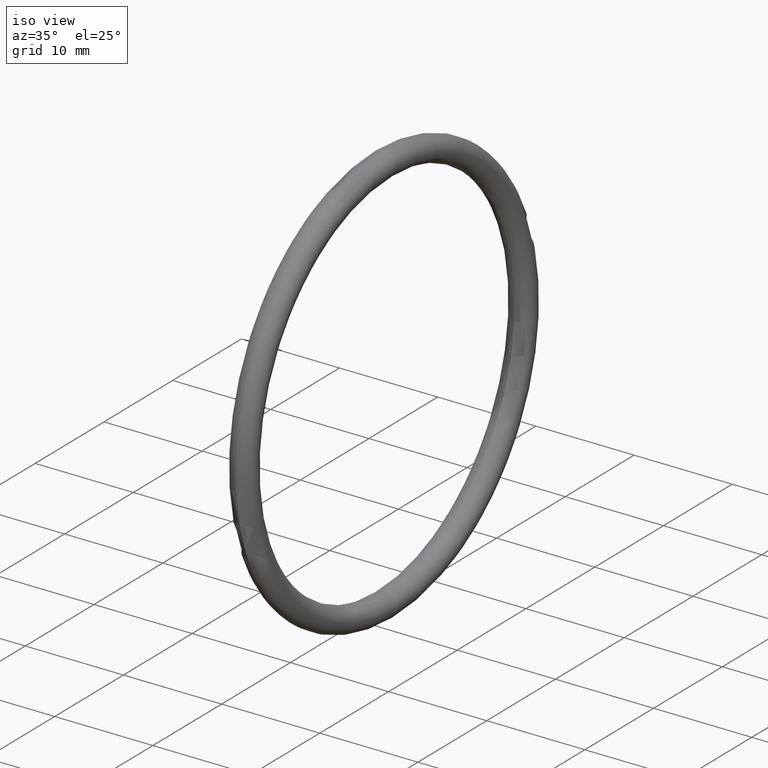
[diagram: clean part render]
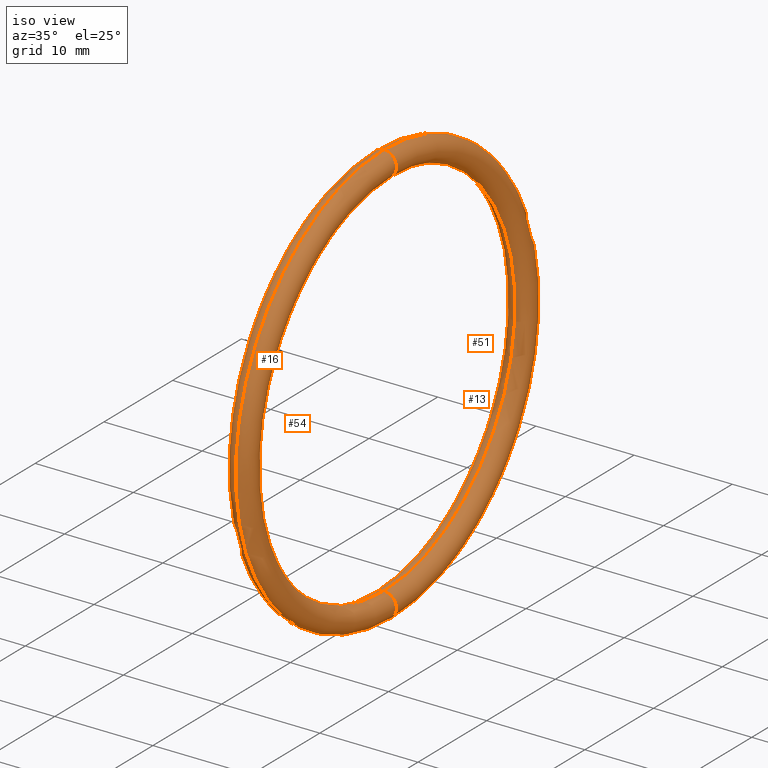
[diagram: same view with one multi-face feature highlighted, each face labeled with its STEP entity id]
A machine part, iso view. The highlighted faces form ONE feature: a constant-radius fillet chain: 4 tangent blend faces with common blend radius 1.27 mm. The faces share edges in the B-rep.
Their STEP definitions:
[1] entity #13 (Torus):
#3 = TOROIDAL_SURFACE ( 'NONE', #38, 0.8000000000000000400, 0.05000000000000000300 ) ;
#4 = CARTESIAN_POINT ( 'NONE',  ( 0.1000000000000001200, 0.0000000000000000000, 0.0000000000000000000 ) ) ;
#10 = FACE_OUTER_BOUND ( 'NONE', #14, .T. ) ;
#13 = ADVANCED_FACE ( 'NONE', ( #10 ), #3, .T. ) ;
#14 = EDGE_LOOP ( 'NONE', ( #43, #47, #85, #49 ) ) ;
#18 = VERTEX_POINT ( 'NONE', #34 ) ;
#19 = DIRECTION ( 'NONE',  ( 0.0000000000000000000, 0.0000000000000000000, 1.000000000000000000 ) ) ;
#20 = DIRECTION ( 'NONE',  ( -1.000000000000000000, -0.0000000000000000000, -0.0000000000000000000 ) ) ;
#21 = AXIS2_PLACEMENT_3D ( 'NONE', #29, #20, #19 ) ;
#22 = CIRCLE ( 'NONE', #21, 0.8500000000000000900 ) ;
#23 = CARTESIAN_POINT ( 'NONE',  ( 0.1000000000000001200, 0.0000000000000000000, 0.0000000000000000000 ) ) ;
#29 = CARTESIAN_POINT ( 'NONE',  ( 0.1000000000000001200, 0.0000000000000000000, 0.0000000000000000000 ) ) ;
#34 = CARTESIAN_POINT ( 'NONE',  ( 0.1000000000000001200, 1.040949779275250400E-016, -0.8500000000000000900 ) ) ;
#36 = DIRECTION ( 'NONE',  ( 0.0000000000000000000, 0.0000000000000000000, 1.000000000000000000 ) ) ;
#37 = DIRECTION ( 'NONE',  ( -1.000000000000000000, -0.0000000000000000000, -0.0000000000000000000 ) ) ;
#38 = AXIS2_PLACEMENT_3D ( 'NONE', #4, #37, #36 ) ;
#43 = ORIENTED_EDGE ( 'NONE', *, *, #81, .F. ) ;
#47 = ORIENTED_EDGE ( 'NONE', *, *, #48, .T. ) ;
#48 = EDGE_CURVE ( 'NONE', #79, #18, #22, .T. ) ;
#49 = ORIENTED_EDGE ( 'NONE', *, *, #50, .F. ) ;
#50 = EDGE_CURVE ( 'NONE', #82, #76, #102, .T. ) ;
#63 = CARTESIAN_POINT ( 'NONE',  ( 0.1000000000000001200, 9.184850993605150900E-017, -0.7500000000000001100 ) ) ;
#64 = DIRECTION ( 'NONE',  ( 0.0000000000000000000, -1.224646799147351700E-016, 1.000000000000000000 ) ) ;
#65 = DIRECTION ( 'NONE',  ( -0.0000000000000000000, 1.000000000000000000, 1.224646799147353200E-016 ) ) ;
#66 = CARTESIAN_POINT ( 'NONE',  ( 0.1000000000000001200, 9.797174393178826200E-017, -0.8000000000000000400 ) ) ;
#67 = AXIS2_PLACEMENT_3D ( 'NONE', #66, #65, #64 ) ;
#72 = CIRCLE ( 'NONE', #67, 0.05000000000000001000 ) ;
#75 = EDGE_CURVE ( 'NONE', #18, #76, #72, .T. ) ;
#76 = VERTEX_POINT ( 'NONE', #63 ) ;
#79 = VERTEX_POINT ( 'NONE', #115 ) ;
#81 = EDGE_CURVE ( 'NONE', #79, #82, #129, .T. ) ;
#82 = VERTEX_POINT ( 'NONE', #123 ) ;
#85 = ORIENTED_EDGE ( 'NONE', *, *, #75, .T. ) ;
#99 = DIRECTION ( 'NONE',  ( 0.0000000000000000000, 0.0000000000000000000, 1.000000000000000000 ) ) ;
#100 = DIRECTION ( 'NONE',  ( -1.000000000000000000, -0.0000000000000000000, -0.0000000000000000000 ) ) ;
#101 = AXIS2_PLACEMENT_3D ( 'NONE', #23, #100, #99 ) ;
#102 = CIRCLE ( 'NONE', #101, 0.7500000000000001100 ) ;
#108 = DIRECTION ( 'NONE',  ( 0.0000000000000000000, 0.0000000000000000000, -1.000000000000000000 ) ) ;
#115 = CARTESIAN_POINT ( 'NONE',  ( 0.1000000000000001200, 0.0000000000000000000, 0.8500000000000000900 ) ) ;
#118 = AXIS2_PLACEMENT_3D ( 'NONE', #121, #127, #108 ) ;
#121 = CARTESIAN_POINT ( 'NONE',  ( 0.1000000000000001200, 0.0000000000000000000, 0.8000000000000000400 ) ) ;
#123 = CARTESIAN_POINT ( 'NONE',  ( 0.1000000000000001200, 0.0000000000000000000, 0.7500000000000001100 ) ) ;
#127 = DIRECTION ( 'NONE',  ( 0.0000000000000000000, -1.000000000000000000, 0.0000000000000000000 ) ) ;
#129 = CIRCLE ( 'NONE', #118, 0.05000000000000001000 ) ;
[2] entity #51 (Torus):
#18 = VERTEX_POINT ( 'NONE', #34 ) ;
#19 = DIRECTION ( 'NONE',  ( 0.0000000000000000000, 0.0000000000000000000, 1.000000000000000000 ) ) ;
#20 = DIRECTION ( 'NONE',  ( -1.000000000000000000, -0.0000000000000000000, -0.0000000000000000000 ) ) ;
#21 = AXIS2_PLACEMENT_3D ( 'NONE', #29, #20, #19 ) ;
#22 = CIRCLE ( 'NONE', #21, 0.8500000000000000900 ) ;
#23 = CARTESIAN_POINT ( 'NONE',  ( 0.1000000000000001200, 0.0000000000000000000, 0.0000000000000000000 ) ) ;
#24 = DIRECTION ( 'NONE',  ( 0.0000000000000000000, 0.0000000000000000000, -1.000000000000000000 ) ) ;
#25 = DIRECTION ( 'NONE',  ( 0.0000000000000000000, -1.000000000000000000, 0.0000000000000000000 ) ) ;
#26 = CARTESIAN_POINT ( 'NONE',  ( 0.1000000000000001200, 0.0000000000000000000, 0.8000000000000000400 ) ) ;
#27 = AXIS2_PLACEMENT_3D ( 'NONE', #26, #25, #24 ) ;
#28 = CIRCLE ( 'NONE', #27, 0.05000000000000001000 ) ;
#29 = CARTESIAN_POINT ( 'NONE',  ( 0.1000000000000001200, 0.0000000000000000000, 0.0000000000000000000 ) ) ;
#34 = CARTESIAN_POINT ( 'NONE',  ( 0.1000000000000001200, 1.040949779275250400E-016, -0.8500000000000000900 ) ) ;
#44 = ORIENTED_EDGE ( 'NONE', *, *, #45, .F. ) ;
#45 = EDGE_CURVE ( 'NONE', #82, #79, #28, .T. ) ;
#46 = EDGE_LOOP ( 'NONE', ( #84, #44, #57, #56 ) ) ;
#48 = EDGE_CURVE ( 'NONE', #79, #18, #22, .T. ) ;
#50 = EDGE_CURVE ( 'NONE', #82, #76, #102, .T. ) ;
#51 = ADVANCED_FACE ( 'NONE', ( #103 ), #97, .T. ) ;
#53 = EDGE_CURVE ( 'NONE', #76, #18, #92, .T. ) ;
#56 = ORIENTED_EDGE ( 'NONE', *, *, #53, .T. ) ;
#57 = ORIENTED_EDGE ( 'NONE', *, *, #50, .T. ) ;
#63 = CARTESIAN_POINT ( 'NONE',  ( 0.1000000000000001200, 9.184850993605150900E-017, -0.7500000000000001100 ) ) ;
#76 = VERTEX_POINT ( 'NONE', #63 ) ;
#79 = VERTEX_POINT ( 'NONE', #115 ) ;
#82 = VERTEX_POINT ( 'NONE', #123 ) ;
#84 = ORIENTED_EDGE ( 'NONE', *, *, #48, .F. ) ;
#88 = DIRECTION ( 'NONE',  ( 0.0000000000000000000, -1.224646799147351700E-016, 1.000000000000000000 ) ) ;
#89 = DIRECTION ( 'NONE',  ( -0.0000000000000000000, 1.000000000000000000, 1.224646799147353200E-016 ) ) ;
#90 = CARTESIAN_POINT ( 'NONE',  ( 0.1000000000000001200, 9.797174393178826200E-017, -0.8000000000000000400 ) ) ;
#91 = AXIS2_PLACEMENT_3D ( 'NONE', #90, #89, #88 ) ;
#92 = CIRCLE ( 'NONE', #91, 0.05000000000000001000 ) ;
#94 = DIRECTION ( 'NONE',  ( 0.0000000000000000000, 0.0000000000000000000, 1.000000000000000000 ) ) ;
#95 = DIRECTION ( 'NONE',  ( -1.000000000000000000, -0.0000000000000000000, -0.0000000000000000000 ) ) ;
#96 = AXIS2_PLACEMENT_3D ( 'NONE', #98, #95, #94 ) ;
#97 = TOROIDAL_SURFACE ( 'NONE', #96, 0.8000000000000000400, 0.05000000000000000300 ) ;
#98 = CARTESIAN_POINT ( 'NONE',  ( 0.1000000000000001200, 0.0000000000000000000, 0.0000000000000000000 ) ) ;
#99 = DIRECTION ( 'NONE',  ( 0.0000000000000000000, 0.0000000000000000000, 1.000000000000000000 ) ) ;
#100 = DIRECTION ( 'NONE',  ( -1.000000000000000000, -0.0000000000000000000, -0.0000000000000000000 ) ) ;
#101 = AXIS2_PLACEMENT_3D ( 'NONE', #23, #100, #99 ) ;
#102 = CIRCLE ( 'NONE', #101, 0.7500000000000001100 ) ;
#103 = FACE_OUTER_BOUND ( 'NONE', #46, .T. ) ;
#115 = CARTESIAN_POINT ( 'NONE',  ( 0.1000000000000001200, 0.0000000000000000000, 0.8500000000000000900 ) ) ;
#123 = CARTESIAN_POINT ( 'NONE',  ( 0.1000000000000001200, 0.0000000000000000000, 0.7500000000000001100 ) ) ;
[3] entity #54 (Torus):
#2 = DIRECTION ( 'NONE',  ( 0.0000000000000000000, 0.0000000000000000000, 1.000000000000000000 ) ) ;
#5 = DIRECTION ( 'NONE',  ( 0.0000000000000000000, 0.0000000000000000000, 1.000000000000000000 ) ) ;
#6 = DIRECTION ( 'NONE',  ( -1.000000000000000000, -0.0000000000000000000, -0.0000000000000000000 ) ) ;
#7 = CARTESIAN_POINT ( 'NONE',  ( 0.1000000000000001200, 0.0000000000000000000, 0.0000000000000000000 ) ) ;
#8 = AXIS2_PLACEMENT_3D ( 'NONE', #7, #6, #5 ) ;
#9 = CIRCLE ( 'NONE', #8, 0.7500000000000001100 ) ;
#12 = EDGE_CURVE ( 'NONE', #76, #82, #9, .T. ) ;
#18 = VERTEX_POINT ( 'NONE', #34 ) ;
#24 = DIRECTION ( 'NONE',  ( 0.0000000000000000000, 0.0000000000000000000, -1.000000000000000000 ) ) ;
#25 = DIRECTION ( 'NONE',  ( 0.0000000000000000000, -1.000000000000000000, 0.0000000000000000000 ) ) ;
#26 = CARTESIAN_POINT ( 'NONE',  ( 0.1000000000000001200, 0.0000000000000000000, 0.8000000000000000400 ) ) ;
#27 = AXIS2_PLACEMENT_3D ( 'NONE', #26, #25, #24 ) ;
#28 = CIRCLE ( 'NONE', #27, 0.05000000000000001000 ) ;
#34 = CARTESIAN_POINT ( 'NONE',  ( 0.1000000000000001200, 1.040949779275250400E-016, -0.8500000000000000900 ) ) ;
#40 = ORIENTED_EDGE ( 'NONE', *, *, #12, .T. ) ;
#41 = ORIENTED_EDGE ( 'NONE', *, *, #45, .T. ) ;
#45 = EDGE_CURVE ( 'NONE', #82, #79, #28, .T. ) ;
#52 = ORIENTED_EDGE ( 'NONE', *, *, #53, .F. ) ;
#53 = EDGE_CURVE ( 'NONE', #76, #18, #92, .T. ) ;
#54 = ADVANCED_FACE ( 'NONE', ( #93 ), #71, .T. ) ;
#55 = ORIENTED_EDGE ( 'NONE', *, *, #78, .F. ) ;
#58 = DIRECTION ( 'NONE',  ( -1.000000000000000000, -0.0000000000000000000, -0.0000000000000000000 ) ) ;
#59 = CARTESIAN_POINT ( 'NONE',  ( 0.1000000000000001200, 0.0000000000000000000, 0.0000000000000000000 ) ) ;
#60 = AXIS2_PLACEMENT_3D ( 'NONE', #59, #58, #2 ) ;
#61 = CIRCLE ( 'NONE', #60, 0.8500000000000000900 ) ;
#63 = CARTESIAN_POINT ( 'NONE',  ( 0.1000000000000001200, 9.184850993605150900E-017, -0.7500000000000001100 ) ) ;
#68 = DIRECTION ( 'NONE',  ( 0.0000000000000000000, 0.0000000000000000000, 1.000000000000000000 ) ) ;
#69 = DIRECTION ( 'NONE',  ( -1.000000000000000000, -0.0000000000000000000, -0.0000000000000000000 ) ) ;
#70 = AXIS2_PLACEMENT_3D ( 'NONE', #73, #69, #68 ) ;
#71 = TOROIDAL_SURFACE ( 'NONE', #70, 0.8000000000000000400, 0.05000000000000000300 ) ;
#73 = CARTESIAN_POINT ( 'NONE',  ( 0.1000000000000001200, 0.0000000000000000000, 0.0000000000000000000 ) ) ;
#76 = VERTEX_POINT ( 'NONE', #63 ) ;
#78 = EDGE_CURVE ( 'NONE', #18, #79, #61, .T. ) ;
#79 = VERTEX_POINT ( 'NONE', #115 ) ;
#82 = VERTEX_POINT ( 'NONE', #123 ) ;
#83 = EDGE_LOOP ( 'NONE', ( #55, #52, #40, #41 ) ) ;
#88 = DIRECTION ( 'NONE',  ( 0.0000000000000000000, -1.224646799147351700E-016, 1.000000000000000000 ) ) ;
#89 = DIRECTION ( 'NONE',  ( -0.0000000000000000000, 1.000000000000000000, 1.224646799147353200E-016 ) ) ;
#90 = CARTESIAN_POINT ( 'NONE',  ( 0.1000000000000001200, 9.797174393178826200E-017, -0.8000000000000000400 ) ) ;
#91 = AXIS2_PLACEMENT_3D ( 'NONE', #90, #89, #88 ) ;
#92 = CIRCLE ( 'NONE', #91, 0.05000000000000001000 ) ;
#93 = FACE_OUTER_BOUND ( 'NONE', #83, .T. ) ;
#115 = CARTESIAN_POINT ( 'NONE',  ( 0.1000000000000001200, 0.0000000000000000000, 0.8500000000000000900 ) ) ;
#123 = CARTESIAN_POINT ( 'NONE',  ( 0.1000000000000001200, 0.0000000000000000000, 0.7500000000000001100 ) ) ;
[4] entity #16 (Torus):
#2 = DIRECTION ( 'NONE',  ( 0.0000000000000000000, 0.0000000000000000000, 1.000000000000000000 ) ) ;
#5 = DIRECTION ( 'NONE',  ( 0.0000000000000000000, 0.0000000000000000000, 1.000000000000000000 ) ) ;
#6 = DIRECTION ( 'NONE',  ( -1.000000000000000000, -0.0000000000000000000, -0.0000000000000000000 ) ) ;
#7 = CARTESIAN_POINT ( 'NONE',  ( 0.1000000000000001200, 0.0000000000000000000, 0.0000000000000000000 ) ) ;
#8 = AXIS2_PLACEMENT_3D ( 'NONE', #7, #6, #5 ) ;
#9 = CIRCLE ( 'NONE', #8, 0.7500000000000001100 ) ;
#11 = ORIENTED_EDGE ( 'NONE', *, *, #12, .F. ) ;
#12 = EDGE_CURVE ( 'NONE', #76, #82, #9, .T. ) ;
#16 = ADVANCED_FACE ( 'NONE', ( #39 ), #35, .T. ) ;
#17 = EDGE_LOOP ( 'NONE', ( #74, #77, #80, #11 ) ) ;
#18 = VERTEX_POINT ( 'NONE', #34 ) ;
#30 = DIRECTION ( 'NONE',  ( 0.0000000000000000000, 0.0000000000000000000, 1.000000000000000000 ) ) ;
#31 = DIRECTION ( 'NONE',  ( -1.000000000000000000, -0.0000000000000000000, -0.0000000000000000000 ) ) ;
#32 = CARTESIAN_POINT ( 'NONE',  ( 0.1000000000000001200, 0.0000000000000000000, 0.0000000000000000000 ) ) ;
#33 = AXIS2_PLACEMENT_3D ( 'NONE', #32, #31, #30 ) ;
#34 = CARTESIAN_POINT ( 'NONE',  ( 0.1000000000000001200, 1.040949779275250400E-016, -0.8500000000000000900 ) ) ;
#35 = TOROIDAL_SURFACE ( 'NONE', #33, 0.8000000000000000400, 0.05000000000000000300 ) ;
#39 = FACE_OUTER_BOUND ( 'NONE', #17, .T. ) ;
#58 = DIRECTION ( 'NONE',  ( -1.000000000000000000, -0.0000000000000000000, -0.0000000000000000000 ) ) ;
#59 = CARTESIAN_POINT ( 'NONE',  ( 0.1000000000000001200, 0.0000000000000000000, 0.0000000000000000000 ) ) ;
#60 = AXIS2_PLACEMENT_3D ( 'NONE', #59, #58, #2 ) ;
#61 = CIRCLE ( 'NONE', #60, 0.8500000000000000900 ) ;
#63 = CARTESIAN_POINT ( 'NONE',  ( 0.1000000000000001200, 9.184850993605150900E-017, -0.7500000000000001100 ) ) ;
#64 = DIRECTION ( 'NONE',  ( 0.0000000000000000000, -1.224646799147351700E-016, 1.000000000000000000 ) ) ;
#65 = DIRECTION ( 'NONE',  ( -0.0000000000000000000, 1.000000000000000000, 1.224646799147353200E-016 ) ) ;
#66 = CARTESIAN_POINT ( 'NONE',  ( 0.1000000000000001200, 9.797174393178826200E-017, -0.8000000000000000400 ) ) ;
#67 = AXIS2_PLACEMENT_3D ( 'NONE', #66, #65, #64 ) ;
#72 = CIRCLE ( 'NONE', #67, 0.05000000000000001000 ) ;
#74 = ORIENTED_EDGE ( 'NONE', *, *, #75, .F. ) ;
#75 = EDGE_CURVE ( 'NONE', #18, #76, #72, .T. ) ;
#76 = VERTEX_POINT ( 'NONE', #63 ) ;
#77 = ORIENTED_EDGE ( 'NONE', *, *, #78, .T. ) ;
#78 = EDGE_CURVE ( 'NONE', #18, #79, #61, .T. ) ;
#79 = VERTEX_POINT ( 'NONE', #115 ) ;
#80 = ORIENTED_EDGE ( 'NONE', *, *, #81, .T. ) ;
#81 = EDGE_CURVE ( 'NONE', #79, #82, #129, .T. ) ;
#82 = VERTEX_POINT ( 'NONE', #123 ) ;
#108 = DIRECTION ( 'NONE',  ( 0.0000000000000000000, 0.0000000000000000000, -1.000000000000000000 ) ) ;
#115 = CARTESIAN_POINT ( 'NONE',  ( 0.1000000000000001200, 0.0000000000000000000, 0.8500000000000000900 ) ) ;
#118 = AXIS2_PLACEMENT_3D ( 'NONE', #121, #127, #108 ) ;
#121 = CARTESIAN_POINT ( 'NONE',  ( 0.1000000000000001200, 0.0000000000000000000, 0.8000000000000000400 ) ) ;
#123 = CARTESIAN_POINT ( 'NONE',  ( 0.1000000000000001200, 0.0000000000000000000, 0.7500000000000001100 ) ) ;
#127 = DIRECTION ( 'NONE',  ( 0.0000000000000000000, -1.000000000000000000, 0.0000000000000000000 ) ) ;
#129 = CIRCLE ( 'NONE', #118, 0.05000000000000001000 ) ;